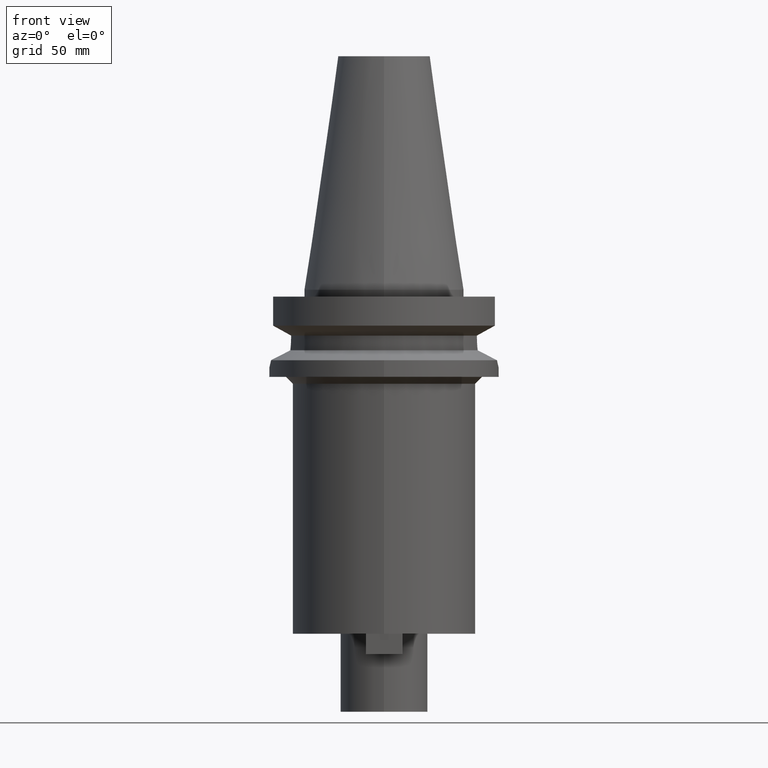
[diagram: clean part render]
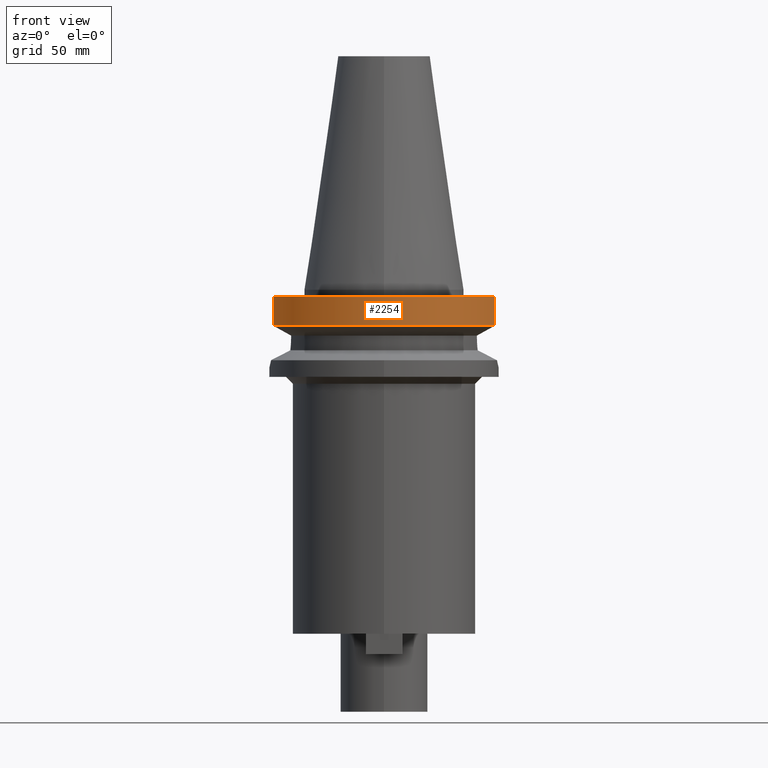
[diagram: same view with one face highlighted and labeled with its STEP entity id]
A machine part, front view. The second image highlights one B-rep face of the part: STEP entity #2254.
In plain terms, the highlighted cylindrical surface (partial cylindrical patch) has radius 50 mm, axis along (0, 0, -1).
Its self-contained STEP definition (entity closure, byte-faithful):
#214=CARTESIAN_POINT('',(0.E0,2.646339268278E-14,-3.E0));
#215=DIRECTION('',(0.E0,0.E0,-1.E0));
#216=DIRECTION('',(9.664114030784E-1,-2.57E-1,0.E0));
#217=AXIS2_PLACEMENT_3D('',#214,#215,#216);
#222=CARTESIAN_POINT('',(0.E0,2.646339268278E-14,-3.E0));
#223=DIRECTION('',(0.E0,0.E0,-1.E0));
#224=DIRECTION('',(0.E0,-1.E0,0.E0));
#225=AXIS2_PLACEMENT_3D('',#222,#223,#224);
#1061=CARTESIAN_POINT('',(4.832056912780E1,-1.285000385858E1,
-1.566265767091E1));
#1066=CARTESIAN_POINT('',(0.E0,1.006319759054E-14,-1.566269223573E1));
#1067=DIRECTION('',(0.E0,0.E0,1.E0));
#1068=DIRECTION('',(-9.664114030784E-1,-2.57E-1,0.E0));
#1069=AXIS2_PLACEMENT_3D('',#1066,#1067,#1068);
#1074=CARTESIAN_POINT('',(0.E0,1.006319759054E-14,-1.566269223573E1));
#1075=DIRECTION('',(0.E0,0.E0,1.E0));
#1076=DIRECTION('',(0.E0,-1.E0,0.E0));
#1077=AXIS2_PLACEMENT_3D('',#1074,#1075,#1076);
#1098=DIRECTION('',(-8.100800697241E-8,3.046187202871E-7,1.E0));
#1099=VECTOR('',#1098,1.266265768251E1);
#1100=CARTESIAN_POINT('',(-4.832056912814E1,-1.285000385728E1,
-1.566265768251E1));
#1101=LINE('',#1100,#1099);
#1105=DIRECTION('',(-8.103519278861E-8,-3.047209459814E-7,-1.E0));
#1106=VECTOR('',#1105,1.266265767091E1);
#1107=CARTESIAN_POINT('',(4.832057015392E1,-1.285E1,-3.E0));
#1108=LINE('',#1107,#1106);
#1210=CARTESIAN_POINT('',(4.832057015392E1,-1.285E1,-3.E0));
#1211=VERTEX_POINT('',#1210);
#1212=CARTESIAN_POINT('',(1.065814103640E-14,-5.E1,-3.E0));
#1213=CARTESIAN_POINT('',(-4.832057015392E1,-1.285E1,-3.E0));
#1214=VERTEX_POINT('',#1212);
#1215=VERTEX_POINT('',#1213);
#1226=CARTESIAN_POINT('',(-4.832056912814E1,-1.285000385728E1,
-1.566265768251E1));
#1227=VERTEX_POINT('',#1226);
#1350=VERTEX_POINT('',#1061);
#1351=CARTESIAN_POINT('',(0.E0,-5.E1,-1.566269223573E1));
#1352=VERTEX_POINT('',#1351);
#2241=CARTESIAN_POINT('',(0.E0,2.646339268278E-14,1.1609E2));
#2242=DIRECTION('',(0.E0,0.E0,-1.E0));
#2243=DIRECTION('',(0.E0,-1.E0,0.E0));
#2244=AXIS2_PLACEMENT_3D('',#2241,#2242,#2243);
#2245=CYLINDRICAL_SURFACE('',#2244,5.E1);
#2246=ORIENTED_EDGE('',*,*,#1573,.T.);
#2247=ORIENTED_EDGE('',*,*,#1534,.F.);
#2248=ORIENTED_EDGE('',*,*,#1532,.F.);
#2249=ORIENTED_EDGE('',*,*,#2217,.T.);
#2250=ORIENTED_EDGE('',*,*,#2233,.F.);
#2251=ORIENTED_EDGE('',*,*,#2231,.F.);
#2252=EDGE_LOOP('',(#2246,#2247,#2248,#2249,#2250,#2251));
#2253=FACE_OUTER_BOUND('',#2252,.F.);
#218=CIRCLE('',#217,5.E1);
#226=CIRCLE('',#225,5.E1);
#1070=CIRCLE('',#1069,5.E1);
#1078=CIRCLE('',#1077,5.E1);
#1532=EDGE_CURVE('',#1211,#1214,#218,.T.);
#1534=EDGE_CURVE('',#1214,#1215,#226,.T.);
#1573=EDGE_CURVE('',#1227,#1215,#1101,.T.);
#2217=EDGE_CURVE('',#1211,#1350,#1108,.T.);
#2231=EDGE_CURVE('',#1227,#1352,#1070,.T.);
#2233=EDGE_CURVE('',#1352,#1350,#1078,.T.);
#2254=ADVANCED_FACE('',(#2253),#2245,.T.);